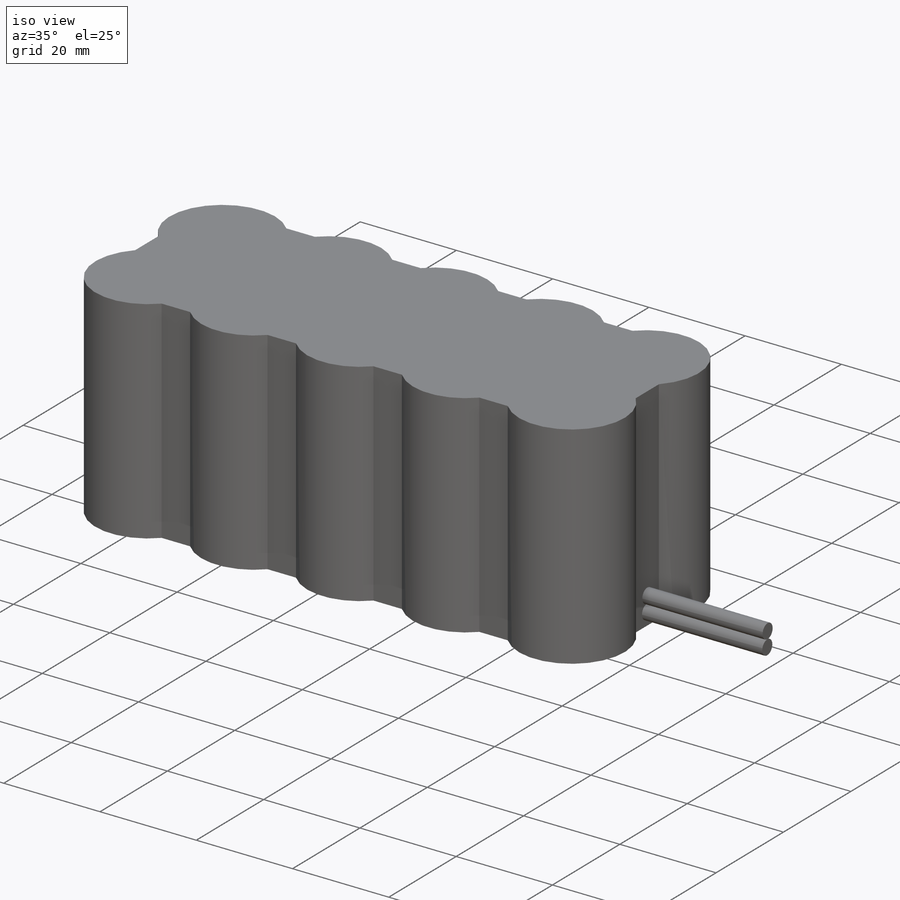
[diagram: iso view]
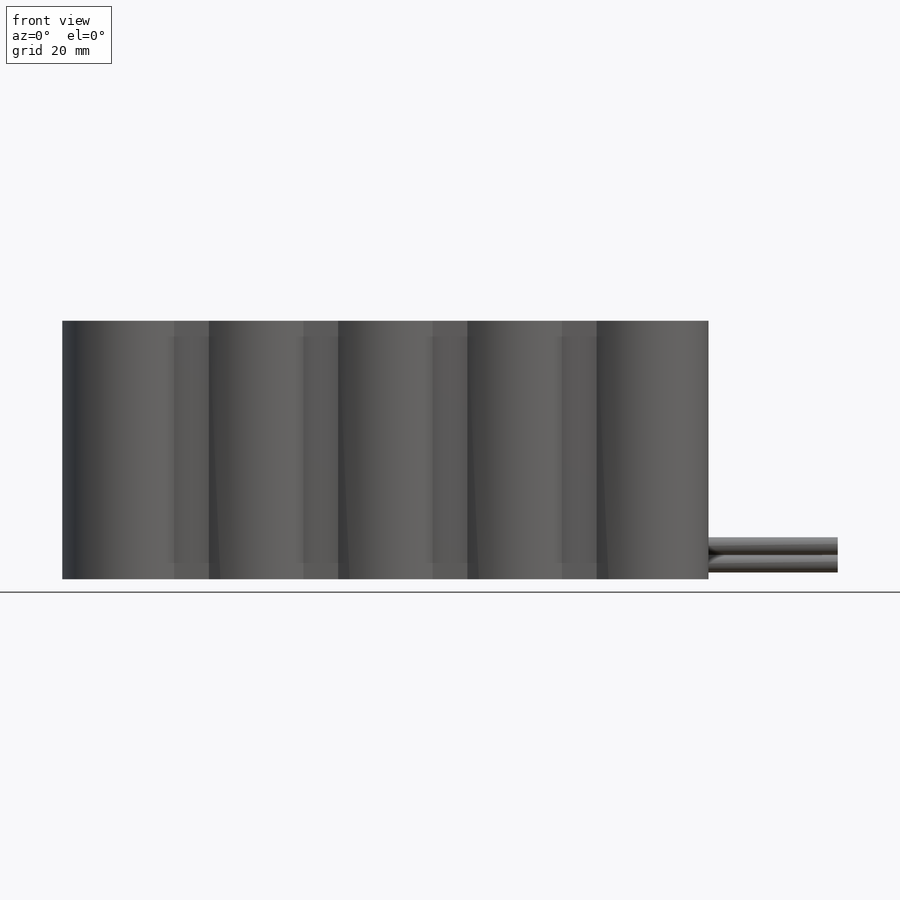
[diagram: front view]
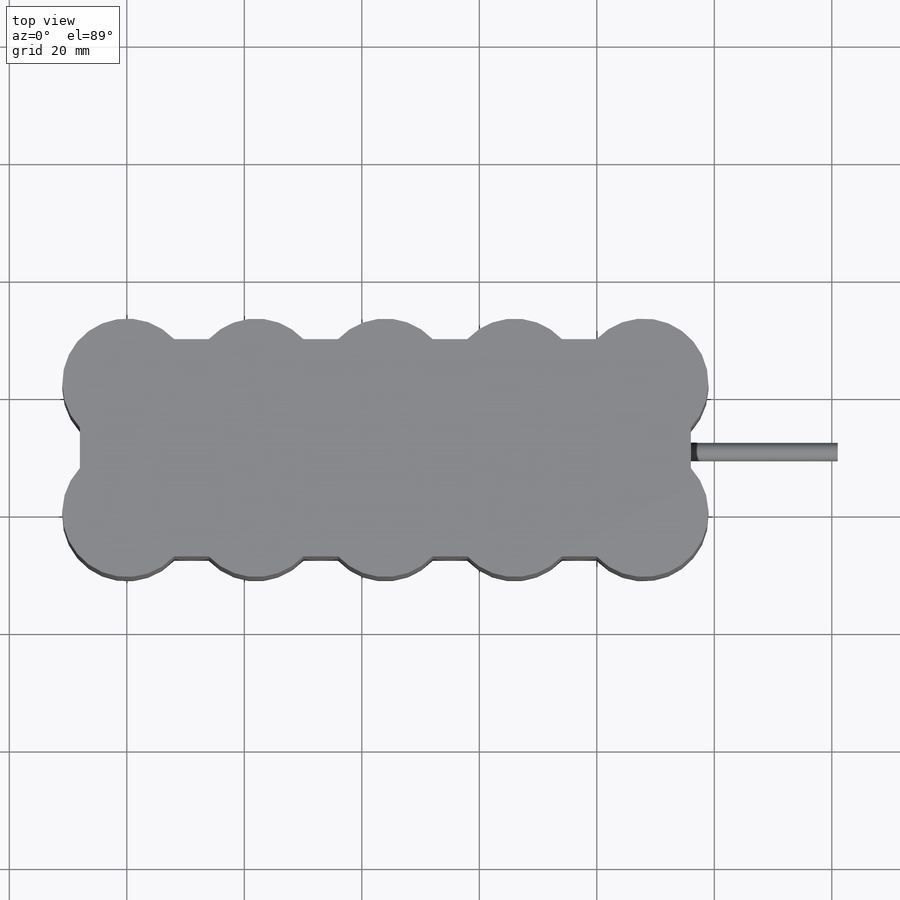
[diagram: top view]
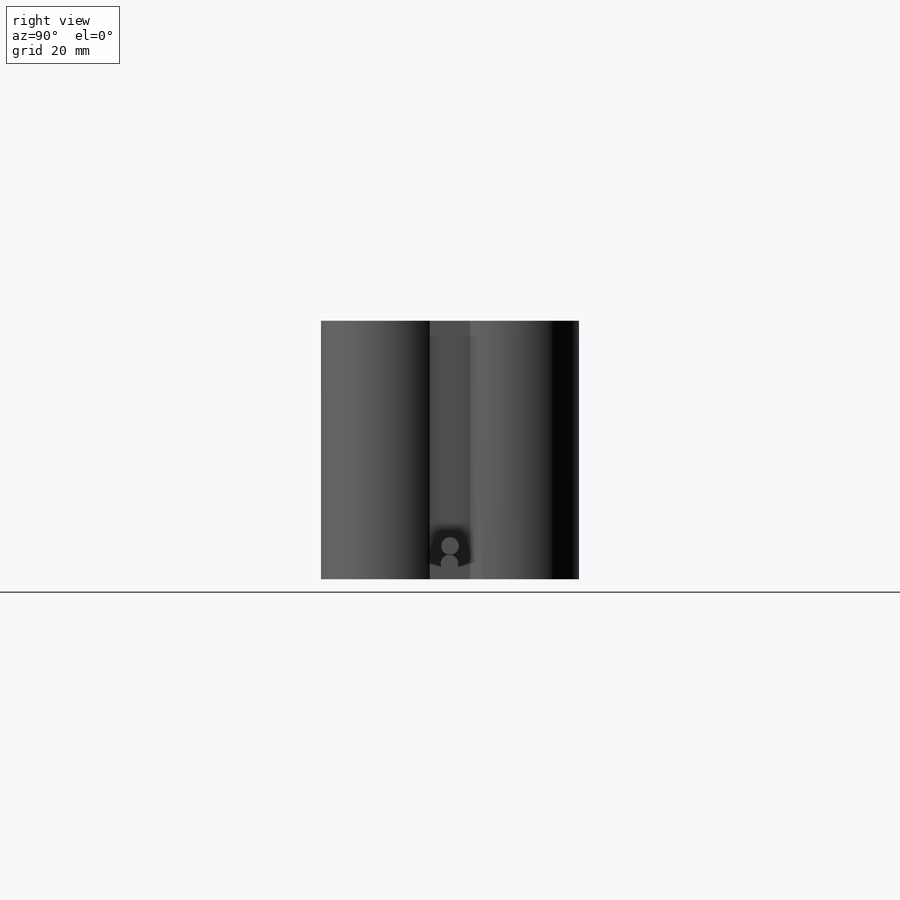
[diagram: right view]
SOLIDWORKS PART (.sldprt)
format: sldprt  version: not decoded by parser v0  size: 260,608 bytes
history: native  units: mm
features: sketch x5, extrude x4, material x1, plane x1 (+17 scaffold rows collapsed)
feature tree (28):
  scaffold x17  (default folders/planes/origin — collapsed)
  material  "Material <not specified>"
  sketch  "Sketch1"  dims[D1=22.0mm D2=22.0mm D4=22.0mm D5=22.0mm D8=22.0mm D10=22.0mm D12=22.0mm D13=22.0mm D14=22.0mm D15=22.0mm D3=22.0mm D6=22.0mm D7=22.0mm D9=22.0mm D11=22.0mm]
  extrude  "Extrude1"  Depth=44mm
  sketch  "Sketch2"  dims[c1.D3=22.0mm c1.D1=7.5mm c1.D2=7.5mm c2.D3=8.0mm c2.D4=8.0mm]
  extrude  "Extrude7"  Depth=44mm
  sketch  "Sketch4"  dims[D1=3.0mm D2=3.0mm D3=3.0mm D4=~2.639322mm]
  extrude  "Extrude12"  Depth=25mm
  sketch  "Sketch5"  dims[D1=3.0mm D2=3.0mm]
  extrude  "Extrude14"  Depth=25mm
  sketch  "Sketch6"
  plane  "Plane1"
decode coverage: 8 of 9 modeling features carry decoded parameters
note: ~ marks probable driven/reference dimensions
note: suppression state not decoded; provenance and decode notes live in map.json
